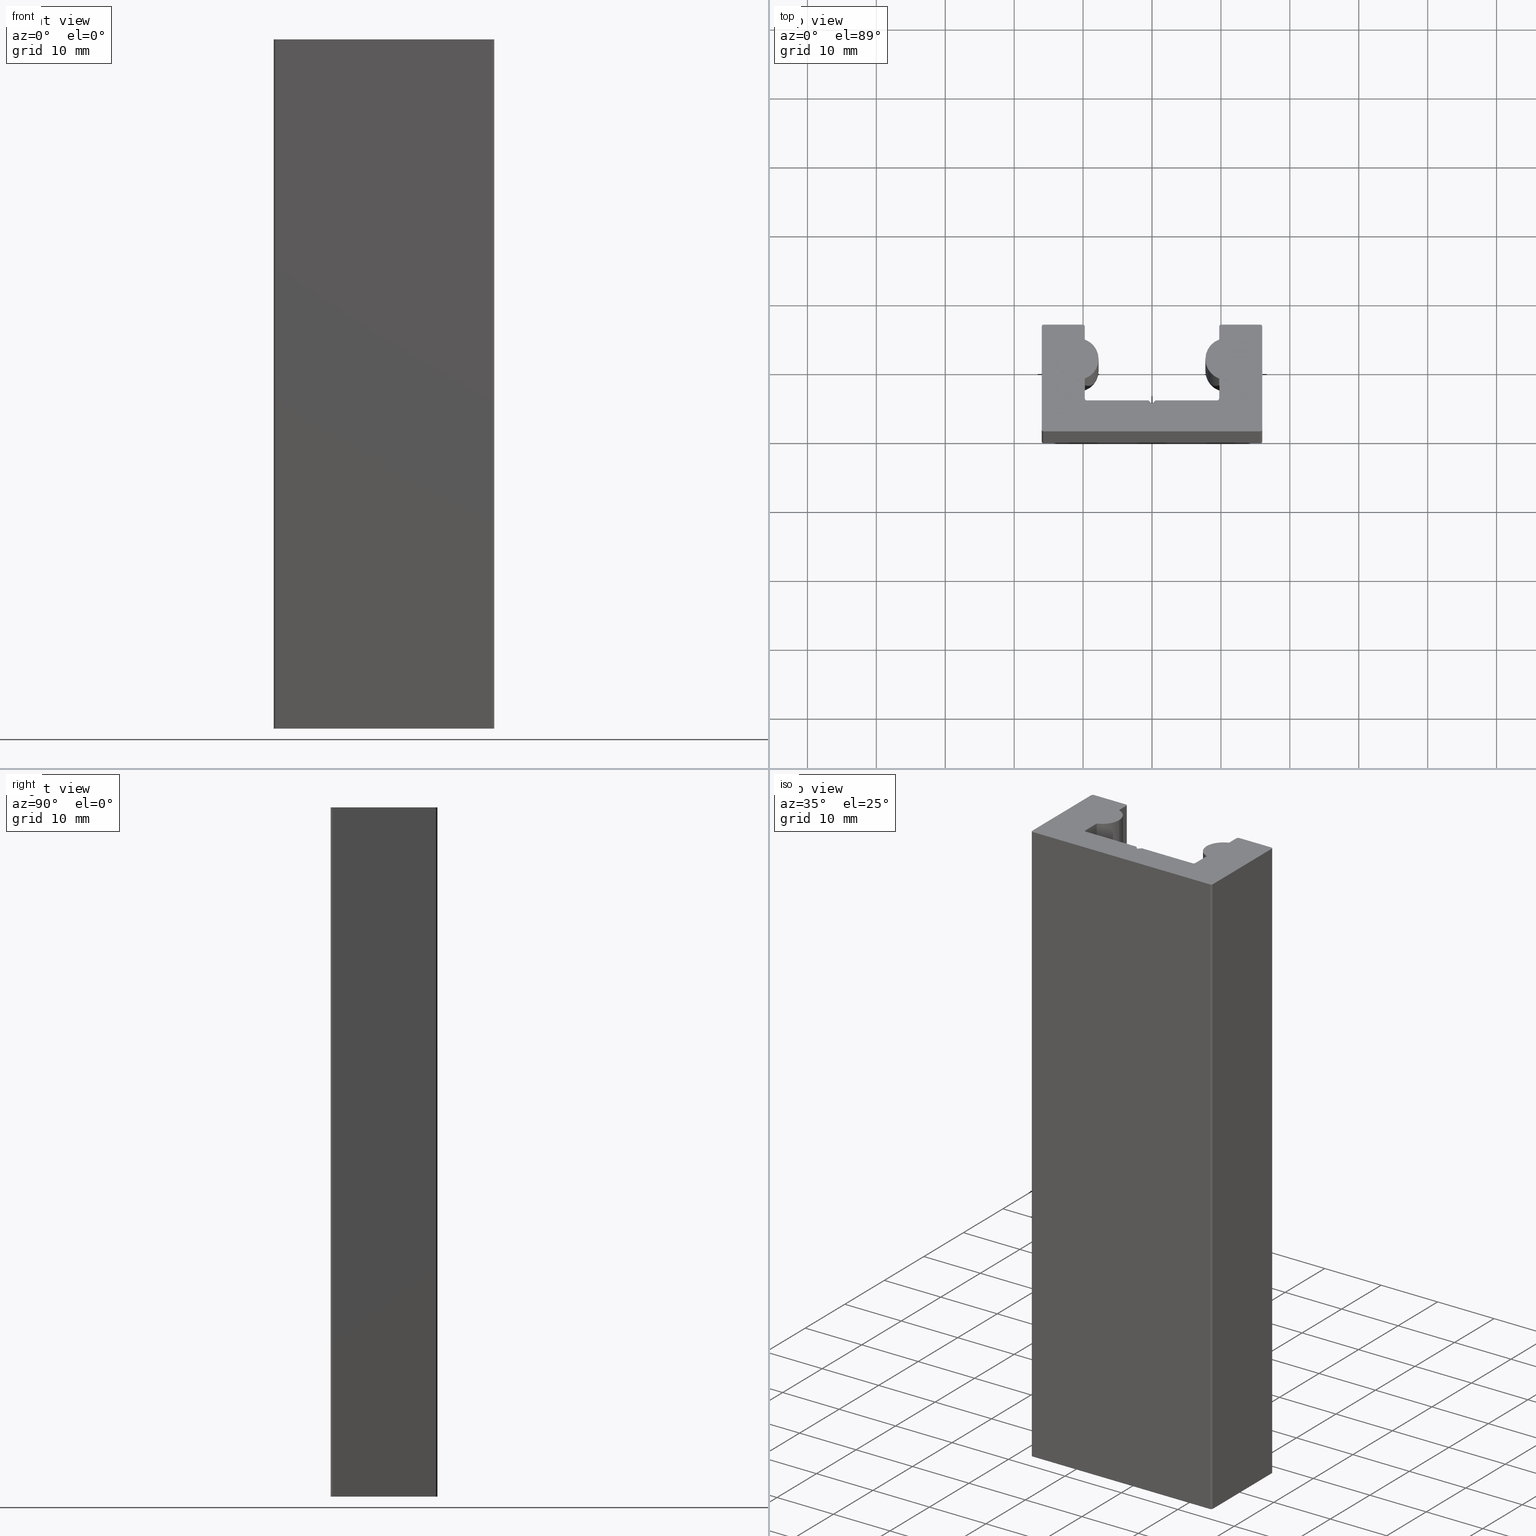
[diagram: canonical four-view strip — front | top / right | iso, engineering-drawing reading convention]
A machine part, canonical four-view strip (front | top / right | iso — engineering-drawing reading convention). The complete STEP part file that produces these views, byte-faithful:
ISO-10303-21;
HEADER;
/* Generated by software containing ST-Developer
 * from STEP Tools, Inc. (www.steptools.com) 
 */

FILE_DESCRIPTION(
/* description */ ('PROF.GUIDA IL32 32x15.5 '),
/* implementation_level */ '2;1');

FILE_NAME(
/* name */ 'C:\\Users\\tecnico5\\Desktop\\SITOWEB\\BPRGD0000013.stp',
/* time_stamp */ '2022-07-26T14:58:26+02:00',
/* author */ ('tecnico3.vi'),
/* organization */ (''),
/* preprocessor_version */ 'ST-DEVELOPER v18.1',
/* originating_system */ 'Autodesk Inventor 2022',
/* authorisation */ '');

FILE_SCHEMA (('AUTOMOTIVE_DESIGN { 1 0 10303 214 3 1 1 }'));
ENDSEC;

DATA;
#10=MECHANICAL_DESIGN_GEOMETRIC_PRESENTATION_REPRESENTATION('',(#27,#28),
#972);
#11=ITEM_DEFINED_TRANSFORMATION($,$,#594,#646);
#12=ITEM_DEFINED_TRANSFORMATION($,$,#640,#647);
#13=ITEM_DEFINED_TRANSFORMATION($,$,#640,#648);
#14=(
REPRESENTATION_RELATIONSHIP($,$,#987,#986)
REPRESENTATION_RELATIONSHIP_WITH_TRANSFORMATION(#11)
SHAPE_REPRESENTATION_RELATIONSHIP()
);
#15=(
REPRESENTATION_RELATIONSHIP($,$,#988,#986)
REPRESENTATION_RELATIONSHIP_WITH_TRANSFORMATION(#12)
SHAPE_REPRESENTATION_RELATIONSHIP()
);
#16=(
REPRESENTATION_RELATIONSHIP($,$,#988,#986)
REPRESENTATION_RELATIONSHIP_WITH_TRANSFORMATION(#13)
SHAPE_REPRESENTATION_RELATIONSHIP()
);
#17=CONTEXT_DEPENDENT_SHAPE_REPRESENTATION(#14,#983);
#18=CONTEXT_DEPENDENT_SHAPE_REPRESENTATION(#15,#984);
#19=CONTEXT_DEPENDENT_SHAPE_REPRESENTATION(#16,#985);
#20=NEXT_ASSEMBLY_USAGE_OCCURRENCE('958510004025:1','958510004025:1',
'958510004025:1',#990,#991,'958510004025:1');
#21=NEXT_ASSEMBLY_USAGE_OCCURRENCE('958510004024:1','958510004024:1',
'958510004024:1',#990,#992,'958510004024:1');
#22=NEXT_ASSEMBLY_USAGE_OCCURRENCE('958510004024:2','958510004024:2',
'958510004024:2',#990,#992,'958510004024:2');
#23=SHAPE_REPRESENTATION_RELATIONSHIP('SRR','None',#987,#25);
#24=SHAPE_REPRESENTATION_RELATIONSHIP('SRR','None',#988,#26);
#25=ADVANCED_BREP_SHAPE_REPRESENTATION('',(#29),#970);
#26=ADVANCED_BREP_SHAPE_REPRESENTATION('',(#30),#971);
#27=STYLED_ITEM('',(#557),#29);
#28=STYLED_ITEM('',(#558),#30);
#29=MANIFOLD_SOLID_BREP('Solido1',#529);
#30=MANIFOLD_SOLID_BREP('Solido1',#530);
#31=PLANE('',#598);
#32=PLANE('',#599);
#33=PLANE('',#611);
#34=PLANE('',#614);
#35=PLANE('',#617);
#36=PLANE('',#620);
#37=PLANE('',#623);
#38=PLANE('',#626);
#39=PLANE('',#629);
#40=PLANE('',#630);
#41=PLANE('',#633);
#42=PLANE('',#634);
#43=PLANE('',#635);
#44=PLANE('',#636);
#45=PLANE('',#639);
#46=PLANE('',#641);
#47=PLANE('',#645);
#48=FACE_OUTER_BOUND('',#76,.T.);
#49=FACE_OUTER_BOUND('',#77,.T.);
#50=FACE_OUTER_BOUND('',#78,.T.);
#51=FACE_OUTER_BOUND('',#79,.T.);
#52=FACE_OUTER_BOUND('',#80,.T.);
#53=FACE_OUTER_BOUND('',#81,.T.);
#54=FACE_OUTER_BOUND('',#82,.T.);
#55=FACE_OUTER_BOUND('',#83,.T.);
#56=FACE_OUTER_BOUND('',#84,.T.);
#57=FACE_OUTER_BOUND('',#85,.T.);
#58=FACE_OUTER_BOUND('',#86,.T.);
#59=FACE_OUTER_BOUND('',#87,.T.);
#60=FACE_OUTER_BOUND('',#88,.T.);
#61=FACE_OUTER_BOUND('',#89,.T.);
#62=FACE_OUTER_BOUND('',#90,.T.);
#63=FACE_OUTER_BOUND('',#91,.T.);
#64=FACE_OUTER_BOUND('',#92,.T.);
#65=FACE_OUTER_BOUND('',#93,.T.);
#66=FACE_OUTER_BOUND('',#94,.T.);
#67=FACE_OUTER_BOUND('',#95,.T.);
#68=FACE_OUTER_BOUND('',#96,.T.);
#69=FACE_OUTER_BOUND('',#97,.T.);
#70=FACE_OUTER_BOUND('',#98,.T.);
#71=FACE_OUTER_BOUND('',#99,.T.);
#72=FACE_OUTER_BOUND('',#100,.T.);
#73=FACE_OUTER_BOUND('',#101,.T.);
#74=FACE_OUTER_BOUND('',#102,.T.);
#75=FACE_OUTER_BOUND('',#103,.T.);
#76=EDGE_LOOP('',(#346,#347,#348,#349));
#77=EDGE_LOOP('',(#350,#351,#352,#353));
#78=EDGE_LOOP('',(#354,#355,#356,#357,#358,#359,#360,#361,#362,#363,#364,
#365,#366,#367,#368,#369,#370,#371,#372,#373,#374,#375,#376));
#79=EDGE_LOOP('',(#377,#378,#379,#380));
#80=EDGE_LOOP('',(#381,#382,#383,#384));
#81=EDGE_LOOP('',(#385,#386,#387,#388));
#82=EDGE_LOOP('',(#389,#390,#391,#392));
#83=EDGE_LOOP('',(#393,#394,#395,#396));
#84=EDGE_LOOP('',(#397,#398,#399,#400));
#85=EDGE_LOOP('',(#401,#402,#403,#404));
#86=EDGE_LOOP('',(#405,#406,#407,#408));
#87=EDGE_LOOP('',(#409,#410,#411,#412));
#88=EDGE_LOOP('',(#413,#414,#415,#416));
#89=EDGE_LOOP('',(#417,#418,#419,#420));
#90=EDGE_LOOP('',(#421,#422,#423,#424));
#91=EDGE_LOOP('',(#425,#426,#427,#428));
#92=EDGE_LOOP('',(#429,#430,#431,#432));
#93=EDGE_LOOP('',(#433,#434,#435,#436));
#94=EDGE_LOOP('',(#437,#438,#439,#440));
#95=EDGE_LOOP('',(#441,#442,#443,#444));
#96=EDGE_LOOP('',(#445,#446,#447,#448));
#97=EDGE_LOOP('',(#449,#450,#451,#452));
#98=EDGE_LOOP('',(#453,#454,#455,#456));
#99=EDGE_LOOP('',(#457,#458,#459,#460));
#100=EDGE_LOOP('',(#461,#462,#463,#464,#465,#466,#467,#468,#469,#470,#471,
#472,#473,#474,#475,#476,#477,#478,#479,#480,#481,#482,#483));
#101=EDGE_LOOP('',(#484));
#102=EDGE_LOOP('',(#485,#486,#487,#488));
#103=EDGE_LOOP('',(#489));
#104=LINE('',#818,#154);
#105=LINE('',#821,#155);
#106=LINE('',#824,#156);
#107=LINE('',#826,#157);
#108=LINE('',#827,#158);
#109=LINE('',#830,#159);
#110=LINE('',#834,#160);
#111=LINE('',#838,#161);
#112=LINE('',#842,#162);
#113=LINE('',#846,#163);
#114=LINE('',#850,#164);
#115=LINE('',#854,#165);
#116=LINE('',#858,#166);
#117=LINE('',#860,#167);
#118=LINE('',#862,#168);
#119=LINE('',#864,#169);
#120=LINE('',#868,#170);
#121=LINE('',#874,#171);
#122=LINE('',#875,#172);
#123=LINE('',#878,#173);
#124=LINE('',#879,#174);
#125=LINE('',#882,#175);
#126=LINE('',#885,#176);
#127=LINE('',#888,#177);
#128=LINE('',#889,#178);
#129=LINE('',#892,#179);
#130=LINE('',#895,#180);
#131=LINE('',#898,#181);
#132=LINE('',#899,#182);
#133=LINE('',#904,#183);
#134=LINE('',#905,#184);
#135=LINE('',#908,#185);
#136=LINE('',#909,#186);
#137=LINE('',#913,#187);
#138=LINE('',#915,#188);
#139=LINE('',#919,#189);
#140=LINE('',#922,#190);
#141=LINE('',#923,#191);
#142=LINE('',#926,#192);
#143=LINE('',#929,#193);
#144=LINE('',#932,#194);
#145=LINE('',#933,#195);
#146=LINE('',#938,#196);
#147=LINE('',#939,#197);
#148=LINE('',#942,#198);
#149=LINE('',#943,#199);
#150=LINE('',#945,#200);
#151=LINE('',#948,#201);
#152=LINE('',#949,#202);
#153=LINE('',#960,#203);
#154=VECTOR('',#657,10.);
#155=VECTOR('',#660,10.);
#156=VECTOR('',#663,10.);
#157=VECTOR('',#664,10.);
#158=VECTOR('',#665,10.);
#159=VECTOR('',#668,10.);
#160=VECTOR('',#671,10.);
#161=VECTOR('',#674,10.);
#162=VECTOR('',#677,10.);
#163=VECTOR('',#680,10.);
#164=VECTOR('',#683,10.);
#165=VECTOR('',#686,10.);
#166=VECTOR('',#689,10.);
#167=VECTOR('',#690,10.);
#168=VECTOR('',#691,10.);
#169=VECTOR('',#692,10.);
#170=VECTOR('',#695,10.);
#171=VECTOR('',#702,10.);
#172=VECTOR('',#703,10.);
#173=VECTOR('',#706,10.);
#174=VECTOR('',#707,10.);
#175=VECTOR('',#710,10.);
#176=VECTOR('',#713,10.);
#177=VECTOR('',#716,10.);
#178=VECTOR('',#717,10.);
#179=VECTOR('',#720,10.);
#180=VECTOR('',#723,10.);
#181=VECTOR('',#726,10.);
#182=VECTOR('',#727,10.);
#183=VECTOR('',#732,10.);
#184=VECTOR('',#733,10.);
#185=VECTOR('',#736,10.);
#186=VECTOR('',#737,10.);
#187=VECTOR('',#742,10.);
#188=VECTOR('',#745,10.);
#189=VECTOR('',#750,10.);
#190=VECTOR('',#753,10.);
#191=VECTOR('',#754,10.);
#192=VECTOR('',#757,10.);
#193=VECTOR('',#762,10.);
#194=VECTOR('',#765,10.);
#195=VECTOR('',#766,10.);
#196=VECTOR('',#773,10.);
#197=VECTOR('',#774,10.);
#198=VECTOR('',#777,10.);
#199=VECTOR('',#778,10.);
#200=VECTOR('',#781,10.);
#201=VECTOR('',#784,10.);
#202=VECTOR('',#785,10.);
#203=VECTOR('',#802,3.);
#204=CIRCLE('',#596,0.3);
#205=CIRCLE('',#597,0.3);
#206=CIRCLE('',#600,0.3);
#207=CIRCLE('',#601,0.3);
#208=CIRCLE('',#602,0.3);
#209=CIRCLE('',#603,0.3);
#210=CIRCLE('',#604,0.3);
#211=CIRCLE('',#605,3.);
#212=CIRCLE('',#606,0.3);
#213=CIRCLE('',#607,0.3);
#214=CIRCLE('',#608,3.);
#215=CIRCLE('',#610,0.3);
#216=CIRCLE('',#613,0.3);
#217=CIRCLE('',#616,0.3);
#218=CIRCLE('',#619,0.3);
#219=CIRCLE('',#622,0.3);
#220=CIRCLE('',#625,0.3);
#221=CIRCLE('',#628,0.3);
#222=CIRCLE('',#632,3.);
#223=CIRCLE('',#638,3.);
#224=CIRCLE('',#642,3.);
#225=CIRCLE('',#644,3.);
#226=VERTEX_POINT('',#814);
#227=VERTEX_POINT('',#815);
#228=VERTEX_POINT('',#817);
#229=VERTEX_POINT('',#819);
#230=VERTEX_POINT('',#823);
#231=VERTEX_POINT('',#825);
#232=VERTEX_POINT('',#829);
#233=VERTEX_POINT('',#831);
#234=VERTEX_POINT('',#833);
#235=VERTEX_POINT('',#835);
#236=VERTEX_POINT('',#837);
#237=VERTEX_POINT('',#839);
#238=VERTEX_POINT('',#841);
#239=VERTEX_POINT('',#843);
#240=VERTEX_POINT('',#845);
#241=VERTEX_POINT('',#847);
#242=VERTEX_POINT('',#849);
#243=VERTEX_POINT('',#851);
#244=VERTEX_POINT('',#853);
#245=VERTEX_POINT('',#855);
#246=VERTEX_POINT('',#857);
#247=VERTEX_POINT('',#859);
#248=VERTEX_POINT('',#861);
#249=VERTEX_POINT('',#863);
#250=VERTEX_POINT('',#865);
#251=VERTEX_POINT('',#867);
#252=VERTEX_POINT('',#871);
#253=VERTEX_POINT('',#872);
#254=VERTEX_POINT('',#877);
#255=VERTEX_POINT('',#881);
#256=VERTEX_POINT('',#883);
#257=VERTEX_POINT('',#887);
#258=VERTEX_POINT('',#891);
#259=VERTEX_POINT('',#893);
#260=VERTEX_POINT('',#897);
#261=VERTEX_POINT('',#901);
#262=VERTEX_POINT('',#902);
#263=VERTEX_POINT('',#907);
#264=VERTEX_POINT('',#911);
#265=VERTEX_POINT('',#917);
#266=VERTEX_POINT('',#921);
#267=VERTEX_POINT('',#925);
#268=VERTEX_POINT('',#931);
#269=VERTEX_POINT('',#937);
#270=VERTEX_POINT('',#941);
#271=VERTEX_POINT('',#947);
#272=VERTEX_POINT('',#955);
#273=VERTEX_POINT('',#958);
#274=EDGE_CURVE('',#226,#227,#204,.T.);
#275=EDGE_CURVE('',#227,#228,#104,.T.);
#276=EDGE_CURVE('',#228,#229,#205,.T.);
#277=EDGE_CURVE('',#229,#226,#105,.T.);
#278=EDGE_CURVE('',#229,#230,#106,.T.);
#279=EDGE_CURVE('',#230,#231,#107,.T.);
#280=EDGE_CURVE('',#231,#226,#108,.T.);
#281=EDGE_CURVE('',#232,#228,#109,.T.);
#282=EDGE_CURVE('',#233,#232,#206,.T.);
#283=EDGE_CURVE('',#234,#233,#110,.T.);
#284=EDGE_CURVE('',#235,#234,#207,.T.);
#285=EDGE_CURVE('',#236,#235,#111,.T.);
#286=EDGE_CURVE('',#237,#236,#208,.T.);
#287=EDGE_CURVE('',#238,#237,#112,.T.);
#288=EDGE_CURVE('',#239,#238,#209,.T.);
#289=EDGE_CURVE('',#240,#239,#113,.T.);
#290=EDGE_CURVE('',#241,#240,#210,.T.);
#291=EDGE_CURVE('',#242,#241,#114,.T.);
#292=EDGE_CURVE('',#243,#242,#211,.T.);
#293=EDGE_CURVE('',#244,#243,#115,.T.);
#294=EDGE_CURVE('',#245,#244,#212,.T.);
#295=EDGE_CURVE('',#246,#245,#116,.T.);
#296=EDGE_CURVE('',#247,#246,#117,.T.);
#297=EDGE_CURVE('',#248,#247,#118,.T.);
#298=EDGE_CURVE('',#249,#248,#119,.T.);
#299=EDGE_CURVE('',#250,#249,#213,.T.);
#300=EDGE_CURVE('',#251,#250,#120,.T.);
#301=EDGE_CURVE('',#230,#251,#214,.T.);
#302=EDGE_CURVE('',#252,#253,#215,.T.);
#303=EDGE_CURVE('',#253,#241,#121,.T.);
#304=EDGE_CURVE('',#240,#252,#122,.T.);
#305=EDGE_CURVE('',#254,#239,#123,.T.);
#306=EDGE_CURVE('',#254,#252,#124,.T.);
#307=EDGE_CURVE('',#244,#255,#125,.T.);
#308=EDGE_CURVE('',#255,#256,#216,.T.);
#309=EDGE_CURVE('',#256,#245,#126,.T.);
#310=EDGE_CURVE('',#243,#257,#127,.T.);
#311=EDGE_CURVE('',#257,#255,#128,.T.);
#312=EDGE_CURVE('',#249,#258,#129,.T.);
#313=EDGE_CURVE('',#258,#259,#217,.T.);
#314=EDGE_CURVE('',#259,#250,#130,.T.);
#315=EDGE_CURVE('',#248,#260,#131,.T.);
#316=EDGE_CURVE('',#260,#258,#132,.T.);
#317=EDGE_CURVE('',#261,#262,#218,.T.);
#318=EDGE_CURVE('',#262,#235,#133,.T.);
#319=EDGE_CURVE('',#234,#261,#134,.T.);
#320=EDGE_CURVE('',#263,#233,#135,.T.);
#321=EDGE_CURVE('',#263,#261,#136,.T.);
#322=EDGE_CURVE('',#264,#263,#219,.T.);
#323=EDGE_CURVE('',#232,#264,#137,.T.);
#324=EDGE_CURVE('',#227,#264,#138,.T.);
#325=EDGE_CURVE('',#265,#254,#220,.T.);
#326=EDGE_CURVE('',#238,#265,#139,.T.);
#327=EDGE_CURVE('',#266,#237,#140,.T.);
#328=EDGE_CURVE('',#266,#265,#141,.T.);
#329=EDGE_CURVE('',#236,#267,#142,.T.);
#330=EDGE_CURVE('',#267,#266,#221,.T.);
#331=EDGE_CURVE('',#262,#267,#143,.T.);
#332=EDGE_CURVE('',#253,#268,#144,.T.);
#333=EDGE_CURVE('',#242,#268,#145,.T.);
#334=EDGE_CURVE('',#268,#257,#222,.T.);
#335=EDGE_CURVE('',#256,#269,#146,.T.);
#336=EDGE_CURVE('',#246,#269,#147,.T.);
#337=EDGE_CURVE('',#269,#270,#148,.T.);
#338=EDGE_CURVE('',#247,#270,#149,.T.);
#339=EDGE_CURVE('',#270,#260,#150,.T.);
#340=EDGE_CURVE('',#259,#271,#151,.T.);
#341=EDGE_CURVE('',#251,#271,#152,.T.);
#342=EDGE_CURVE('',#271,#231,#223,.T.);
#343=EDGE_CURVE('',#272,#272,#224,.T.);
#344=EDGE_CURVE('',#273,#273,#225,.T.);
#345=EDGE_CURVE('',#273,#272,#153,.T.);
#346=ORIENTED_EDGE('',*,*,#274,.T.);
#347=ORIENTED_EDGE('',*,*,#275,.T.);
#348=ORIENTED_EDGE('',*,*,#276,.T.);
#349=ORIENTED_EDGE('',*,*,#277,.T.);
#350=ORIENTED_EDGE('',*,*,#277,.F.);
#351=ORIENTED_EDGE('',*,*,#278,.T.);
#352=ORIENTED_EDGE('',*,*,#279,.T.);
#353=ORIENTED_EDGE('',*,*,#280,.T.);
#354=ORIENTED_EDGE('',*,*,#276,.F.);
#355=ORIENTED_EDGE('',*,*,#281,.F.);
#356=ORIENTED_EDGE('',*,*,#282,.F.);
#357=ORIENTED_EDGE('',*,*,#283,.F.);
#358=ORIENTED_EDGE('',*,*,#284,.F.);
#359=ORIENTED_EDGE('',*,*,#285,.F.);
#360=ORIENTED_EDGE('',*,*,#286,.F.);
#361=ORIENTED_EDGE('',*,*,#287,.F.);
#362=ORIENTED_EDGE('',*,*,#288,.F.);
#363=ORIENTED_EDGE('',*,*,#289,.F.);
#364=ORIENTED_EDGE('',*,*,#290,.F.);
#365=ORIENTED_EDGE('',*,*,#291,.F.);
#366=ORIENTED_EDGE('',*,*,#292,.F.);
#367=ORIENTED_EDGE('',*,*,#293,.F.);
#368=ORIENTED_EDGE('',*,*,#294,.F.);
#369=ORIENTED_EDGE('',*,*,#295,.F.);
#370=ORIENTED_EDGE('',*,*,#296,.F.);
#371=ORIENTED_EDGE('',*,*,#297,.F.);
#372=ORIENTED_EDGE('',*,*,#298,.F.);
#373=ORIENTED_EDGE('',*,*,#299,.F.);
#374=ORIENTED_EDGE('',*,*,#300,.F.);
#375=ORIENTED_EDGE('',*,*,#301,.F.);
#376=ORIENTED_EDGE('',*,*,#278,.F.);
#377=ORIENTED_EDGE('',*,*,#302,.T.);
#378=ORIENTED_EDGE('',*,*,#303,.T.);
#379=ORIENTED_EDGE('',*,*,#290,.T.);
#380=ORIENTED_EDGE('',*,*,#304,.T.);
#381=ORIENTED_EDGE('',*,*,#304,.F.);
#382=ORIENTED_EDGE('',*,*,#289,.T.);
#383=ORIENTED_EDGE('',*,*,#305,.F.);
#384=ORIENTED_EDGE('',*,*,#306,.T.);
#385=ORIENTED_EDGE('',*,*,#294,.T.);
#386=ORIENTED_EDGE('',*,*,#307,.T.);
#387=ORIENTED_EDGE('',*,*,#308,.T.);
#388=ORIENTED_EDGE('',*,*,#309,.T.);
#389=ORIENTED_EDGE('',*,*,#307,.F.);
#390=ORIENTED_EDGE('',*,*,#293,.T.);
#391=ORIENTED_EDGE('',*,*,#310,.T.);
#392=ORIENTED_EDGE('',*,*,#311,.T.);
#393=ORIENTED_EDGE('',*,*,#299,.T.);
#394=ORIENTED_EDGE('',*,*,#312,.T.);
#395=ORIENTED_EDGE('',*,*,#313,.T.);
#396=ORIENTED_EDGE('',*,*,#314,.T.);
#397=ORIENTED_EDGE('',*,*,#312,.F.);
#398=ORIENTED_EDGE('',*,*,#298,.T.);
#399=ORIENTED_EDGE('',*,*,#315,.T.);
#400=ORIENTED_EDGE('',*,*,#316,.T.);
#401=ORIENTED_EDGE('',*,*,#317,.T.);
#402=ORIENTED_EDGE('',*,*,#318,.T.);
#403=ORIENTED_EDGE('',*,*,#284,.T.);
#404=ORIENTED_EDGE('',*,*,#319,.T.);
#405=ORIENTED_EDGE('',*,*,#319,.F.);
#406=ORIENTED_EDGE('',*,*,#283,.T.);
#407=ORIENTED_EDGE('',*,*,#320,.F.);
#408=ORIENTED_EDGE('',*,*,#321,.T.);
#409=ORIENTED_EDGE('',*,*,#322,.T.);
#410=ORIENTED_EDGE('',*,*,#320,.T.);
#411=ORIENTED_EDGE('',*,*,#282,.T.);
#412=ORIENTED_EDGE('',*,*,#323,.T.);
#413=ORIENTED_EDGE('',*,*,#275,.F.);
#414=ORIENTED_EDGE('',*,*,#324,.T.);
#415=ORIENTED_EDGE('',*,*,#323,.F.);
#416=ORIENTED_EDGE('',*,*,#281,.T.);
#417=ORIENTED_EDGE('',*,*,#325,.T.);
#418=ORIENTED_EDGE('',*,*,#305,.T.);
#419=ORIENTED_EDGE('',*,*,#288,.T.);
#420=ORIENTED_EDGE('',*,*,#326,.T.);
#421=ORIENTED_EDGE('',*,*,#326,.F.);
#422=ORIENTED_EDGE('',*,*,#287,.T.);
#423=ORIENTED_EDGE('',*,*,#327,.F.);
#424=ORIENTED_EDGE('',*,*,#328,.T.);
#425=ORIENTED_EDGE('',*,*,#286,.T.);
#426=ORIENTED_EDGE('',*,*,#329,.T.);
#427=ORIENTED_EDGE('',*,*,#330,.T.);
#428=ORIENTED_EDGE('',*,*,#327,.T.);
#429=ORIENTED_EDGE('',*,*,#318,.F.);
#430=ORIENTED_EDGE('',*,*,#331,.T.);
#431=ORIENTED_EDGE('',*,*,#329,.F.);
#432=ORIENTED_EDGE('',*,*,#285,.T.);
#433=ORIENTED_EDGE('',*,*,#303,.F.);
#434=ORIENTED_EDGE('',*,*,#332,.T.);
#435=ORIENTED_EDGE('',*,*,#333,.F.);
#436=ORIENTED_EDGE('',*,*,#291,.T.);
#437=ORIENTED_EDGE('',*,*,#334,.T.);
#438=ORIENTED_EDGE('',*,*,#310,.F.);
#439=ORIENTED_EDGE('',*,*,#292,.T.);
#440=ORIENTED_EDGE('',*,*,#333,.T.);
#441=ORIENTED_EDGE('',*,*,#309,.F.);
#442=ORIENTED_EDGE('',*,*,#335,.T.);
#443=ORIENTED_EDGE('',*,*,#336,.F.);
#444=ORIENTED_EDGE('',*,*,#295,.T.);
#445=ORIENTED_EDGE('',*,*,#337,.T.);
#446=ORIENTED_EDGE('',*,*,#338,.F.);
#447=ORIENTED_EDGE('',*,*,#296,.T.);
#448=ORIENTED_EDGE('',*,*,#336,.T.);
#449=ORIENTED_EDGE('',*,*,#339,.T.);
#450=ORIENTED_EDGE('',*,*,#315,.F.);
#451=ORIENTED_EDGE('',*,*,#297,.T.);
#452=ORIENTED_EDGE('',*,*,#338,.T.);
#453=ORIENTED_EDGE('',*,*,#314,.F.);
#454=ORIENTED_EDGE('',*,*,#340,.T.);
#455=ORIENTED_EDGE('',*,*,#341,.F.);
#456=ORIENTED_EDGE('',*,*,#300,.T.);
#457=ORIENTED_EDGE('',*,*,#342,.T.);
#458=ORIENTED_EDGE('',*,*,#279,.F.);
#459=ORIENTED_EDGE('',*,*,#301,.T.);
#460=ORIENTED_EDGE('',*,*,#341,.T.);
#461=ORIENTED_EDGE('',*,*,#274,.F.);
#462=ORIENTED_EDGE('',*,*,#280,.F.);
#463=ORIENTED_EDGE('',*,*,#342,.F.);
#464=ORIENTED_EDGE('',*,*,#340,.F.);
#465=ORIENTED_EDGE('',*,*,#313,.F.);
#466=ORIENTED_EDGE('',*,*,#316,.F.);
#467=ORIENTED_EDGE('',*,*,#339,.F.);
#468=ORIENTED_EDGE('',*,*,#337,.F.);
#469=ORIENTED_EDGE('',*,*,#335,.F.);
#470=ORIENTED_EDGE('',*,*,#308,.F.);
#471=ORIENTED_EDGE('',*,*,#311,.F.);
#472=ORIENTED_EDGE('',*,*,#334,.F.);
#473=ORIENTED_EDGE('',*,*,#332,.F.);
#474=ORIENTED_EDGE('',*,*,#302,.F.);
#475=ORIENTED_EDGE('',*,*,#306,.F.);
#476=ORIENTED_EDGE('',*,*,#325,.F.);
#477=ORIENTED_EDGE('',*,*,#328,.F.);
#478=ORIENTED_EDGE('',*,*,#330,.F.);
#479=ORIENTED_EDGE('',*,*,#331,.F.);
#480=ORIENTED_EDGE('',*,*,#317,.F.);
#481=ORIENTED_EDGE('',*,*,#321,.F.);
#482=ORIENTED_EDGE('',*,*,#322,.F.);
#483=ORIENTED_EDGE('',*,*,#324,.F.);
#484=ORIENTED_EDGE('',*,*,#343,.F.);
#485=ORIENTED_EDGE('',*,*,#344,.T.);
#486=ORIENTED_EDGE('',*,*,#345,.T.);
#487=ORIENTED_EDGE('',*,*,#343,.T.);
#488=ORIENTED_EDGE('',*,*,#345,.F.);
#489=ORIENTED_EDGE('',*,*,#344,.F.);
#490=CYLINDRICAL_SURFACE('',#595,0.3);
#491=CYLINDRICAL_SURFACE('',#609,0.3);
#492=CYLINDRICAL_SURFACE('',#612,0.3);
#493=CYLINDRICAL_SURFACE('',#615,0.3);
#494=CYLINDRICAL_SURFACE('',#618,0.3);
#495=CYLINDRICAL_SURFACE('',#621,0.3);
#496=CYLINDRICAL_SURFACE('',#624,0.3);
#497=CYLINDRICAL_SURFACE('',#627,0.3);
#498=CYLINDRICAL_SURFACE('',#631,3.);
#499=CYLINDRICAL_SURFACE('',#637,3.);
#500=CYLINDRICAL_SURFACE('',#643,3.);
#501=ADVANCED_FACE('',(#48),#490,.T.);
#502=ADVANCED_FACE('',(#49),#31,.T.);
#503=ADVANCED_FACE('',(#50),#32,.F.);
#504=ADVANCED_FACE('',(#51),#491,.T.);
#505=ADVANCED_FACE('',(#52),#33,.T.);
#506=ADVANCED_FACE('',(#53),#492,.F.);
#507=ADVANCED_FACE('',(#54),#34,.T.);
#508=ADVANCED_FACE('',(#55),#493,.F.);
#509=ADVANCED_FACE('',(#56),#35,.T.);
#510=ADVANCED_FACE('',(#57),#494,.T.);
#511=ADVANCED_FACE('',(#58),#36,.T.);
#512=ADVANCED_FACE('',(#59),#495,.T.);
#513=ADVANCED_FACE('',(#60),#37,.T.);
#514=ADVANCED_FACE('',(#61),#496,.T.);
#515=ADVANCED_FACE('',(#62),#38,.T.);
#516=ADVANCED_FACE('',(#63),#497,.T.);
#517=ADVANCED_FACE('',(#64),#39,.T.);
#518=ADVANCED_FACE('',(#65),#40,.T.);
#519=ADVANCED_FACE('',(#66),#498,.F.);
#520=ADVANCED_FACE('',(#67),#41,.T.);
#521=ADVANCED_FACE('',(#68),#42,.T.);
#522=ADVANCED_FACE('',(#69),#43,.T.);
#523=ADVANCED_FACE('',(#70),#44,.T.);
#524=ADVANCED_FACE('',(#71),#499,.F.);
#525=ADVANCED_FACE('',(#72),#45,.T.);
#526=ADVANCED_FACE('',(#73),#46,.T.);
#527=ADVANCED_FACE('',(#74),#500,.T.);
#528=ADVANCED_FACE('',(#75),#47,.F.);
#529=CLOSED_SHELL('',(#501,#502,#503,#504,#505,#506,#507,#508,#509,#510,
#511,#512,#513,#514,#515,#516,#517,#518,#519,#520,#521,#522,#523,#524,#525));
#530=CLOSED_SHELL('',(#526,#527,#528));
#531=DERIVED_UNIT_ELEMENT(#536,1.);
#532=DERIVED_UNIT_ELEMENT(#974,-3.);
#533=DERIVED_UNIT_ELEMENT(#536,1.);
#534=DERIVED_UNIT_ELEMENT(#974,-3.);
#535=DIMENSIONAL_EXPONENTS(1.,0.,0.,0.,0.,0.,0.);
#536=(
CONVERSION_BASED_UNIT('gram',#538)
MASS_UNIT()
NAMED_UNIT(#535)
);
#537=(
MASS_UNIT()
NAMED_UNIT(*)
SI_UNIT(.KILO.,.GRAM.)
);
#538=MASS_MEASURE_WITH_UNIT(MASS_MEASURE(0.001),#537);
#539=DERIVED_UNIT((#531,#532));
#540=DERIVED_UNIT((#533,#534));
#541=MEASURE_REPRESENTATION_ITEM('density measure',
POSITIVE_RATIO_MEASURE(2.71),#539);
#542=MEASURE_REPRESENTATION_ITEM('density measure',
POSITIVE_RATIO_MEASURE(7.85),#540);
#543=PROPERTY_DEFINITION_REPRESENTATION(#553,#547);
#544=PROPERTY_DEFINITION_REPRESENTATION(#554,#548);
#545=PROPERTY_DEFINITION_REPRESENTATION(#555,#549);
#546=PROPERTY_DEFINITION_REPRESENTATION(#556,#550);
#547=REPRESENTATION('material name',(#551),#970);
#548=REPRESENTATION('density',(#541),#970);
#549=REPRESENTATION('material name',(#552),#971);
#550=REPRESENTATION('density',(#542),#971);
#551=DESCRIPTIVE_REPRESENTATION_ITEM('Alluminio - 6061',
'Alluminio - 6061');
#552=DESCRIPTIVE_REPRESENTATION_ITEM('Acciaio','Acciaio');
#553=PROPERTY_DEFINITION('material property','material name',#991);
#554=PROPERTY_DEFINITION('material property','density of part',#991);
#555=PROPERTY_DEFINITION('material property','material name',#992);
#556=PROPERTY_DEFINITION('material property','density of part',#992);
#557=PRESENTATION_STYLE_ASSIGNMENT((#559));
#558=PRESENTATION_STYLE_ASSIGNMENT((#560));
#559=SURFACE_STYLE_USAGE(.BOTH.,#565);
#560=SURFACE_STYLE_USAGE(.BOTH.,#566);
#561=SURFACE_STYLE_RENDERING_WITH_PROPERTIES($,#573,(#563));
#562=SURFACE_STYLE_RENDERING_WITH_PROPERTIES($,#574,(#564));
#563=SURFACE_STYLE_TRANSPARENT(0.);
#564=SURFACE_STYLE_TRANSPARENT(0.);
#565=SURFACE_SIDE_STYLE('',(#567,#561));
#566=SURFACE_SIDE_STYLE('',(#568,#562));
#567=SURFACE_STYLE_FILL_AREA(#569);
#568=SURFACE_STYLE_FILL_AREA(#570);
#569=FILL_AREA_STYLE('',(#571));
#570=FILL_AREA_STYLE('',(#572));
#571=FILL_AREA_STYLE_COLOUR('',#573);
#572=FILL_AREA_STYLE_COLOUR('',#574);
#573=COLOUR_RGB('',0.898039215686275,0.898039215686275,0.898039215686275);
#574=COLOUR_RGB('',0.956862745098039,0.956862745098039,0.956862745098039);
#575=DATE_TIME_ROLE('creation_date');
#576=DATE_TIME_ROLE('creation_date');
#577=DATE_TIME_ROLE('creation_date');
#578=APPLIED_DATE_AND_TIME_ASSIGNMENT(#581,#575,(#990));
#579=APPLIED_DATE_AND_TIME_ASSIGNMENT(#582,#576,(#991));
#580=APPLIED_DATE_AND_TIME_ASSIGNMENT(#583,#577,(#992));
#581=DATE_AND_TIME(#584,#587);
#582=DATE_AND_TIME(#585,#588);
#583=DATE_AND_TIME(#586,#589);
#584=CALENDAR_DATE(2013,5,6);
#585=CALENDAR_DATE(2015,23,2);
#586=CALENDAR_DATE(2015,23,2);
#587=LOCAL_TIME(0,0,0.,#590);
#588=LOCAL_TIME(0,0,0.,#591);
#589=LOCAL_TIME(0,0,0.,#592);
#590=COORDINATED_UNIVERSAL_TIME_OFFSET(0,0,.BEHIND.);
#591=COORDINATED_UNIVERSAL_TIME_OFFSET(0,0,.BEHIND.);
#592=COORDINATED_UNIVERSAL_TIME_OFFSET(0,0,.BEHIND.);
#593=AXIS2_PLACEMENT_3D('placement',#811,#649,#650);
#594=AXIS2_PLACEMENT_3D('placement',#812,#651,#652);
#595=AXIS2_PLACEMENT_3D('',#813,#653,#654);
#596=AXIS2_PLACEMENT_3D('',#816,#655,#656);
#597=AXIS2_PLACEMENT_3D('',#820,#658,#659);
#598=AXIS2_PLACEMENT_3D('',#822,#661,#662);
#599=AXIS2_PLACEMENT_3D('',#828,#666,#667);
#600=AXIS2_PLACEMENT_3D('',#832,#669,#670);
#601=AXIS2_PLACEMENT_3D('',#836,#672,#673);
#602=AXIS2_PLACEMENT_3D('',#840,#675,#676);
#603=AXIS2_PLACEMENT_3D('',#844,#678,#679);
#604=AXIS2_PLACEMENT_3D('',#848,#681,#682);
#605=AXIS2_PLACEMENT_3D('',#852,#684,#685);
#606=AXIS2_PLACEMENT_3D('',#856,#687,#688);
#607=AXIS2_PLACEMENT_3D('',#866,#693,#694);
#608=AXIS2_PLACEMENT_3D('',#869,#696,#697);
#609=AXIS2_PLACEMENT_3D('',#870,#698,#699);
#610=AXIS2_PLACEMENT_3D('',#873,#700,#701);
#611=AXIS2_PLACEMENT_3D('',#876,#704,#705);
#612=AXIS2_PLACEMENT_3D('',#880,#708,#709);
#613=AXIS2_PLACEMENT_3D('',#884,#711,#712);
#614=AXIS2_PLACEMENT_3D('',#886,#714,#715);
#615=AXIS2_PLACEMENT_3D('',#890,#718,#719);
#616=AXIS2_PLACEMENT_3D('',#894,#721,#722);
#617=AXIS2_PLACEMENT_3D('',#896,#724,#725);
#618=AXIS2_PLACEMENT_3D('',#900,#728,#729);
#619=AXIS2_PLACEMENT_3D('',#903,#730,#731);
#620=AXIS2_PLACEMENT_3D('',#906,#734,#735);
#621=AXIS2_PLACEMENT_3D('',#910,#738,#739);
#622=AXIS2_PLACEMENT_3D('',#912,#740,#741);
#623=AXIS2_PLACEMENT_3D('',#914,#743,#744);
#624=AXIS2_PLACEMENT_3D('',#916,#746,#747);
#625=AXIS2_PLACEMENT_3D('',#918,#748,#749);
#626=AXIS2_PLACEMENT_3D('',#920,#751,#752);
#627=AXIS2_PLACEMENT_3D('',#924,#755,#756);
#628=AXIS2_PLACEMENT_3D('',#927,#758,#759);
#629=AXIS2_PLACEMENT_3D('',#928,#760,#761);
#630=AXIS2_PLACEMENT_3D('',#930,#763,#764);
#631=AXIS2_PLACEMENT_3D('',#934,#767,#768);
#632=AXIS2_PLACEMENT_3D('',#935,#769,#770);
#633=AXIS2_PLACEMENT_3D('',#936,#771,#772);
#634=AXIS2_PLACEMENT_3D('',#940,#775,#776);
#635=AXIS2_PLACEMENT_3D('',#944,#779,#780);
#636=AXIS2_PLACEMENT_3D('',#946,#782,#783);
#637=AXIS2_PLACEMENT_3D('',#950,#786,#787);
#638=AXIS2_PLACEMENT_3D('',#951,#788,#789);
#639=AXIS2_PLACEMENT_3D('',#952,#790,#791);
#640=AXIS2_PLACEMENT_3D('placement',#953,#792,#793);
#641=AXIS2_PLACEMENT_3D('',#954,#794,#795);
#642=AXIS2_PLACEMENT_3D('',#956,#796,#797);
#643=AXIS2_PLACEMENT_3D('',#957,#798,#799);
#644=AXIS2_PLACEMENT_3D('',#959,#800,#801);
#645=AXIS2_PLACEMENT_3D('',#961,#803,#804);
#646=AXIS2_PLACEMENT_3D('',#962,#805,#806);
#647=AXIS2_PLACEMENT_3D('',#963,#807,#808);
#648=AXIS2_PLACEMENT_3D('',#964,#809,#810);
#649=DIRECTION('axis',(0.,0.,1.));
#650=DIRECTION('refdir',(1.,0.,0.));
#651=DIRECTION('axis',(0.,0.,1.));
#652=DIRECTION('refdir',(1.,0.,0.));
#653=DIRECTION('center_axis',(0.,0.,1.));
#654=DIRECTION('ref_axis',(-0.707106781186542,0.707106781186553,0.));
#655=DIRECTION('center_axis',(0.,0.,-1.));
#656=DIRECTION('ref_axis',(-0.707106781186542,0.707106781186553,0.));
#657=DIRECTION('',(0.,0.,-1.));
#658=DIRECTION('center_axis',(0.,0.,1.));
#659=DIRECTION('ref_axis',(-0.707106781186542,0.707106781186553,0.));
#660=DIRECTION('',(0.,0.,1.));
#661=DIRECTION('center_axis',(-1.,7.66879415337645E-15,0.));
#662=DIRECTION('ref_axis',(0.,0.,1.));
#663=DIRECTION('',(-7.66879415337645E-15,-1.,0.));
#664=DIRECTION('',(0.,0.,1.));
#665=DIRECTION('',(7.66879415337645E-15,1.,0.));
#666=DIRECTION('center_axis',(0.,0.,1.));
#667=DIRECTION('ref_axis',(1.,0.,0.));
#668=DIRECTION('',(-1.,7.10542735760102E-16,0.));
#669=DIRECTION('center_axis',(0.,0.,1.));
#670=DIRECTION('ref_axis',(0.707106781186548,0.707106781186548,0.));
#671=DIRECTION('',(0.,1.,0.));
#672=DIRECTION('center_axis',(0.,0.,1.));
#673=DIRECTION('ref_axis',(0.707106781186545,-0.70710678118655,0.));
#674=DIRECTION('',(1.,0.,0.));
#675=DIRECTION('center_axis',(0.,0.,1.));
#676=DIRECTION('ref_axis',(-0.70710678118655,-0.707106781186545,0.));
#677=DIRECTION('',(0.,-1.,0.));
#678=DIRECTION('center_axis',(0.,0.,1.));
#679=DIRECTION('ref_axis',(-0.707106781186548,0.707106781186548,0.));
#680=DIRECTION('',(-1.,-3.55271367880051E-16,0.));
#681=DIRECTION('center_axis',(0.,0.,1.));
#682=DIRECTION('ref_axis',(0.707106781186545,0.70710678118655,0.));
#683=DIRECTION('',(-4.60127649202588E-15,1.,0.));
#684=DIRECTION('center_axis',(0.,0.,-1.));
#685=DIRECTION('ref_axis',(-0.333333333333333,-0.942809041582063,0.));
#686=DIRECTION('',(0.,1.,0.));
#687=DIRECTION('center_axis',(0.,0.,-1.));
#688=DIRECTION('ref_axis',(-0.707106781186547,-0.707106781186547,0.));
#689=DIRECTION('',(-1.,-1.20024110770287E-16,0.));
#690=DIRECTION('',(-0.707106781186546,0.707106781186549,0.));
#691=DIRECTION('',(-0.707106781186546,-0.707106781186549,0.));
#692=DIRECTION('',(-1.,6.00120553851436E-17,0.));
#693=DIRECTION('center_axis',(0.,0.,-1.));
#694=DIRECTION('ref_axis',(0.707106781186547,-0.707106781186547,0.));
#695=DIRECTION('',(0.,-1.,0.));
#696=DIRECTION('center_axis',(0.,0.,-1.));
#697=DIRECTION('ref_axis',(0.333333333333333,0.942809041582063,0.));
#698=DIRECTION('center_axis',(0.,0.,1.));
#699=DIRECTION('ref_axis',(0.707106781186545,0.70710678118655,0.));
#700=DIRECTION('center_axis',(0.,0.,-1.));
#701=DIRECTION('ref_axis',(0.707106781186545,0.70710678118655,0.));
#702=DIRECTION('',(0.,0.,-1.));
#703=DIRECTION('',(0.,0.,1.));
#704=DIRECTION('center_axis',(-3.55271367880051E-16,1.,0.));
#705=DIRECTION('ref_axis',(0.,0.,1.));
#706=DIRECTION('',(0.,0.,-1.));
#707=DIRECTION('',(1.,3.55271367880051E-16,0.));
#708=DIRECTION('center_axis',(0.,0.,1.));
#709=DIRECTION('ref_axis',(-0.707106781186547,-0.707106781186547,0.));
#710=DIRECTION('',(0.,0.,1.));
#711=DIRECTION('center_axis',(0.,0.,1.));
#712=DIRECTION('ref_axis',(-0.707106781186547,-0.707106781186547,0.));
#713=DIRECTION('',(0.,0.,-1.));
#714=DIRECTION('center_axis',(1.,0.,0.));
#715=DIRECTION('ref_axis',(0.,0.,-1.));
#716=DIRECTION('',(0.,0.,1.));
#717=DIRECTION('',(0.,-1.,0.));
#718=DIRECTION('center_axis',(0.,0.,1.));
#719=DIRECTION('ref_axis',(0.707106781186547,-0.707106781186547,0.));
#720=DIRECTION('',(0.,0.,1.));
#721=DIRECTION('center_axis',(0.,0.,1.));
#722=DIRECTION('ref_axis',(0.707106781186547,-0.707106781186547,0.));
#723=DIRECTION('',(0.,0.,-1.));
#724=DIRECTION('center_axis',(6.00120553851436E-17,1.,0.));
#725=DIRECTION('ref_axis',(0.,0.,1.));
#726=DIRECTION('',(0.,0.,1.));
#727=DIRECTION('',(1.,-6.00120553851436E-17,0.));
#728=DIRECTION('center_axis',(0.,0.,1.));
#729=DIRECTION('ref_axis',(0.707106781186545,-0.70710678118655,0.));
#730=DIRECTION('center_axis',(0.,0.,-1.));
#731=DIRECTION('ref_axis',(0.707106781186545,-0.70710678118655,0.));
#732=DIRECTION('',(0.,0.,-1.));
#733=DIRECTION('',(0.,0.,1.));
#734=DIRECTION('center_axis',(1.,0.,0.));
#735=DIRECTION('ref_axis',(0.,0.,-1.));
#736=DIRECTION('',(0.,0.,-1.));
#737=DIRECTION('',(0.,-1.,0.));
#738=DIRECTION('center_axis',(0.,0.,1.));
#739=DIRECTION('ref_axis',(0.707106781186548,0.707106781186548,0.));
#740=DIRECTION('center_axis',(0.,0.,-1.));
#741=DIRECTION('ref_axis',(0.707106781186548,0.707106781186548,0.));
#742=DIRECTION('',(0.,0.,1.));
#743=DIRECTION('center_axis',(7.10542735760102E-16,1.,0.));
#744=DIRECTION('ref_axis',(0.,0.,1.));
#745=DIRECTION('',(1.,-7.10542735760102E-16,0.));
#746=DIRECTION('center_axis',(0.,0.,1.));
#747=DIRECTION('ref_axis',(-0.707106781186548,0.707106781186548,0.));
#748=DIRECTION('center_axis',(0.,0.,-1.));
#749=DIRECTION('ref_axis',(-0.707106781186548,0.707106781186548,0.));
#750=DIRECTION('',(0.,0.,1.));
#751=DIRECTION('center_axis',(-1.,0.,0.));
#752=DIRECTION('ref_axis',(0.,0.,1.));
#753=DIRECTION('',(0.,0.,-1.));
#754=DIRECTION('',(0.,1.,0.));
#755=DIRECTION('center_axis',(0.,0.,-1.));
#756=DIRECTION('ref_axis',(-0.70710678118655,-0.707106781186545,0.));
#757=DIRECTION('',(0.,0.,1.));
#758=DIRECTION('center_axis',(0.,0.,-1.));
#759=DIRECTION('ref_axis',(-0.70710678118655,-0.707106781186545,0.));
#760=DIRECTION('center_axis',(0.,-1.,0.));
#761=DIRECTION('ref_axis',(0.,0.,-1.));
#762=DIRECTION('',(-1.,0.,0.));
#763=DIRECTION('center_axis',(1.,4.60127649202588E-15,0.));
#764=DIRECTION('ref_axis',(0.,0.,-1.));
#765=DIRECTION('',(4.60127649202588E-15,-1.,0.));
#766=DIRECTION('',(0.,0.,1.));
#767=DIRECTION('center_axis',(0.,0.,1.));
#768=DIRECTION('ref_axis',(-0.333333333333333,-0.942809041582063,0.));
#769=DIRECTION('center_axis',(0.,0.,1.));
#770=DIRECTION('ref_axis',(-0.333333333333333,-0.942809041582063,0.));
#771=DIRECTION('center_axis',(-1.20024110770287E-16,1.,0.));
#772=DIRECTION('ref_axis',(0.,0.,1.));
#773=DIRECTION('',(1.,1.20024110770287E-16,0.));
#774=DIRECTION('',(0.,0.,1.));
#775=DIRECTION('center_axis',(0.707106781186549,0.707106781186546,0.));
#776=DIRECTION('ref_axis',(0.,0.,-1.));
#777=DIRECTION('',(0.707106781186546,-0.707106781186549,0.));
#778=DIRECTION('',(0.,0.,1.));
#779=DIRECTION('center_axis',(-0.707106781186549,0.707106781186546,0.));
#780=DIRECTION('ref_axis',(0.,0.,1.));
#781=DIRECTION('',(0.707106781186546,0.707106781186549,0.));
#782=DIRECTION('center_axis',(-1.,0.,0.));
#783=DIRECTION('ref_axis',(0.,0.,1.));
#784=DIRECTION('',(0.,1.,0.));
#785=DIRECTION('',(0.,0.,1.));
#786=DIRECTION('center_axis',(0.,0.,1.));
#787=DIRECTION('ref_axis',(0.333333333333333,0.942809041582063,0.));
#788=DIRECTION('center_axis',(0.,0.,1.));
#789=DIRECTION('ref_axis',(0.333333333333333,0.942809041582063,0.));
#790=DIRECTION('center_axis',(0.,0.,1.));
#791=DIRECTION('ref_axis',(1.,0.,0.));
#792=DIRECTION('axis',(0.,0.,1.));
#793=DIRECTION('refdir',(1.,0.,0.));
#794=DIRECTION('center_axis',(0.,0.,-1.));
#795=DIRECTION('ref_axis',(-1.,0.,0.));
#796=DIRECTION('center_axis',(0.,0.,1.));
#797=DIRECTION('ref_axis',(-1.,0.,0.));
#798=DIRECTION('center_axis',(0.,0.,1.));
#799=DIRECTION('ref_axis',(-1.,0.,0.));
#800=DIRECTION('center_axis',(0.,0.,-1.));
#801=DIRECTION('ref_axis',(-1.,0.,0.));
#802=DIRECTION('',(0.,0.,-1.));
#803=DIRECTION('center_axis',(0.,0.,-1.));
#804=DIRECTION('ref_axis',(-1.,0.,0.));
#805=DIRECTION('',(0.,0.,1.));
#806=DIRECTION('',(1.,0.,0.));
#807=DIRECTION('',(0.,0.,1.));
#808=DIRECTION('',(1.,0.,0.));
#809=DIRECTION('',(0.,0.,1.));
#810=DIRECTION('',(1.,0.,0.));
#811=CARTESIAN_POINT('',(0.,0.,0.));
#812=CARTESIAN_POINT('',(0.,0.,0.));
#813=CARTESIAN_POINT('Origin',(10.05,15.2,0.));
#814=CARTESIAN_POINT('',(9.75000000000002,15.2,50.));
#815=CARTESIAN_POINT('',(10.05,15.5,50.));
#816=CARTESIAN_POINT('Origin',(10.05,15.2,50.));
#817=CARTESIAN_POINT('',(10.05,15.5,-50.));
#818=CARTESIAN_POINT('',(10.05,15.5,0.));
#819=CARTESIAN_POINT('',(9.75000000000002,15.2,-50.));
#820=CARTESIAN_POINT('Origin',(10.05,15.2,-50.));
#821=CARTESIAN_POINT('',(9.75000000000002,15.2,0.));
#822=CARTESIAN_POINT('Origin',(9.75,13.3284271247462,0.));
#823=CARTESIAN_POINT('',(9.75,13.3284271247462,-50.));
#824=CARTESIAN_POINT('',(9.75000000000002,15.5,-50.));
#825=CARTESIAN_POINT('',(9.75,13.3284271247462,50.));
#826=CARTESIAN_POINT('',(9.75,13.3284271247462,0.));
#827=CARTESIAN_POINT('',(9.75000000000002,15.5,50.));
#828=CARTESIAN_POINT('Origin',(2.77555756156289E-16,6.70556436952344,-50.));
#829=CARTESIAN_POINT('',(15.7,15.5,-50.));
#830=CARTESIAN_POINT('',(16.,15.5,-50.));
#831=CARTESIAN_POINT('',(16.,15.2,-50.));
#832=CARTESIAN_POINT('Origin',(15.7,15.2,-50.));
#833=CARTESIAN_POINT('',(16.,0.3,-50.));
#834=CARTESIAN_POINT('',(16.,0.,-50.));
#835=CARTESIAN_POINT('',(15.7,0.,-50.));
#836=CARTESIAN_POINT('Origin',(15.7,0.3,-50.));
#837=CARTESIAN_POINT('',(-15.7,0.,-50.));
#838=CARTESIAN_POINT('',(-16.,0.,-50.));
#839=CARTESIAN_POINT('',(-16.,0.3,-50.));
#840=CARTESIAN_POINT('Origin',(-15.7,0.3,-50.));
#841=CARTESIAN_POINT('',(-16.,15.2,-50.));
#842=CARTESIAN_POINT('',(-16.,15.5,-50.));
#843=CARTESIAN_POINT('',(-15.7,15.5,-50.));
#844=CARTESIAN_POINT('Origin',(-15.7,15.2,-50.));
#845=CARTESIAN_POINT('',(-10.05,15.5,-50.));
#846=CARTESIAN_POINT('',(-9.75000000000001,15.5,-50.));
#847=CARTESIAN_POINT('',(-9.75000000000001,15.2,-50.));
#848=CARTESIAN_POINT('Origin',(-10.05,15.2,-50.));
#849=CARTESIAN_POINT('',(-9.75,13.3284271247462,-50.));
#850=CARTESIAN_POINT('',(-9.75,13.3284271247462,-50.));
#851=CARTESIAN_POINT('',(-9.75,7.67157287525381,-50.));
#852=CARTESIAN_POINT('Origin',(-10.75,10.5,-50.));
#853=CARTESIAN_POINT('',(-9.75,4.8,-50.));
#854=CARTESIAN_POINT('',(-9.75,4.5,-50.));
#855=CARTESIAN_POINT('',(-9.45,4.5,-50.));
#856=CARTESIAN_POINT('Origin',(-9.45,4.8,-50.));
#857=CARTESIAN_POINT('',(-0.5,4.5,-50.));
#858=CARTESIAN_POINT('',(-0.5,4.5,-50.));
#859=CARTESIAN_POINT('',(0.,4.,-50.));
#860=CARTESIAN_POINT('',(0.,4.,-50.));
#861=CARTESIAN_POINT('',(0.5,4.5,-50.));
#862=CARTESIAN_POINT('',(0.5,4.5,-50.));
#863=CARTESIAN_POINT('',(9.45,4.5,-50.));
#864=CARTESIAN_POINT('',(9.75,4.5,-50.));
#865=CARTESIAN_POINT('',(9.75,4.8,-50.));
#866=CARTESIAN_POINT('Origin',(9.45,4.8,-50.));
#867=CARTESIAN_POINT('',(9.75,7.67157287525381,-50.));
#868=CARTESIAN_POINT('',(9.75,7.67157287525381,-50.));
#869=CARTESIAN_POINT('Origin',(10.75,10.5,-50.));
#870=CARTESIAN_POINT('Origin',(-10.05,15.2,0.));
#871=CARTESIAN_POINT('',(-10.05,15.5,50.));
#872=CARTESIAN_POINT('',(-9.75000000000001,15.2,50.));
#873=CARTESIAN_POINT('Origin',(-10.05,15.2,50.));
#874=CARTESIAN_POINT('',(-9.75000000000001,15.2,0.));
#875=CARTESIAN_POINT('',(-10.05,15.5,0.));
#876=CARTESIAN_POINT('Origin',(-16.,15.5,0.));
#877=CARTESIAN_POINT('',(-15.7,15.5,50.));
#878=CARTESIAN_POINT('',(-15.7,15.5,0.));
#879=CARTESIAN_POINT('',(-9.75000000000001,15.5,50.));
#880=CARTESIAN_POINT('Origin',(-9.45,4.8,0.));
#881=CARTESIAN_POINT('',(-9.75,4.8,50.));
#882=CARTESIAN_POINT('',(-9.75,4.8,0.));
#883=CARTESIAN_POINT('',(-9.45,4.5,50.));
#884=CARTESIAN_POINT('Origin',(-9.45,4.8,50.));
#885=CARTESIAN_POINT('',(-9.45,4.5,0.));
#886=CARTESIAN_POINT('Origin',(-9.75,7.67157287525381,0.));
#887=CARTESIAN_POINT('',(-9.75,7.67157287525381,50.));
#888=CARTESIAN_POINT('',(-9.75,7.67157287525381,0.));
#889=CARTESIAN_POINT('',(-9.75,4.5,50.));
#890=CARTESIAN_POINT('Origin',(9.45,4.8,0.));
#891=CARTESIAN_POINT('',(9.45,4.5,50.));
#892=CARTESIAN_POINT('',(9.45,4.5,0.));
#893=CARTESIAN_POINT('',(9.75,4.8,50.));
#894=CARTESIAN_POINT('Origin',(9.45,4.8,50.));
#895=CARTESIAN_POINT('',(9.75,4.8,0.));
#896=CARTESIAN_POINT('Origin',(0.5,4.5,0.));
#897=CARTESIAN_POINT('',(0.5,4.5,50.));
#898=CARTESIAN_POINT('',(0.5,4.5,0.));
#899=CARTESIAN_POINT('',(9.75,4.5,50.));
#900=CARTESIAN_POINT('Origin',(15.7,0.3,0.));
#901=CARTESIAN_POINT('',(16.,0.3,50.));
#902=CARTESIAN_POINT('',(15.7,0.,50.));
#903=CARTESIAN_POINT('Origin',(15.7,0.3,50.));
#904=CARTESIAN_POINT('',(15.7,0.,0.));
#905=CARTESIAN_POINT('',(16.,0.3,0.));
#906=CARTESIAN_POINT('Origin',(16.,15.5,0.));
#907=CARTESIAN_POINT('',(16.,15.2,50.));
#908=CARTESIAN_POINT('',(16.,15.2,0.));
#909=CARTESIAN_POINT('',(16.,0.,50.));
#910=CARTESIAN_POINT('Origin',(15.7,15.2,0.));
#911=CARTESIAN_POINT('',(15.7,15.5,50.));
#912=CARTESIAN_POINT('Origin',(15.7,15.2,50.));
#913=CARTESIAN_POINT('',(15.7,15.5,0.));
#914=CARTESIAN_POINT('Origin',(9.75000000000002,15.5,0.));
#915=CARTESIAN_POINT('',(16.,15.5,50.));
#916=CARTESIAN_POINT('Origin',(-15.7,15.2,0.));
#917=CARTESIAN_POINT('',(-16.,15.2,50.));
#918=CARTESIAN_POINT('Origin',(-15.7,15.2,50.));
#919=CARTESIAN_POINT('',(-16.,15.2,0.));
#920=CARTESIAN_POINT('Origin',(-16.,0.,0.));
#921=CARTESIAN_POINT('',(-16.,0.3,50.));
#922=CARTESIAN_POINT('',(-16.,0.3,0.));
#923=CARTESIAN_POINT('',(-16.,15.5,50.));
#924=CARTESIAN_POINT('Origin',(-15.7,0.3,0.));
#925=CARTESIAN_POINT('',(-15.7,0.,50.));
#926=CARTESIAN_POINT('',(-15.7,0.,0.));
#927=CARTESIAN_POINT('Origin',(-15.7,0.3,50.));
#928=CARTESIAN_POINT('Origin',(16.,0.,0.));
#929=CARTESIAN_POINT('',(-16.,0.,50.));
#930=CARTESIAN_POINT('Origin',(-9.75000000000001,15.5,0.));
#931=CARTESIAN_POINT('',(-9.75,13.3284271247462,50.));
#932=CARTESIAN_POINT('',(-9.75,13.3284271247462,50.));
#933=CARTESIAN_POINT('',(-9.75,13.3284271247462,0.));
#934=CARTESIAN_POINT('Origin',(-10.75,10.5,0.));
#935=CARTESIAN_POINT('Origin',(-10.75,10.5,50.));
#936=CARTESIAN_POINT('Origin',(-9.75,4.5,0.));
#937=CARTESIAN_POINT('',(-0.5,4.5,50.));
#938=CARTESIAN_POINT('',(-0.5,4.5,50.));
#939=CARTESIAN_POINT('',(-0.5,4.5,0.));
#940=CARTESIAN_POINT('Origin',(-0.5,4.5,0.));
#941=CARTESIAN_POINT('',(0.,4.,50.));
#942=CARTESIAN_POINT('',(0.,4.,50.));
#943=CARTESIAN_POINT('',(0.,4.,0.));
#944=CARTESIAN_POINT('Origin',(0.,4.,0.));
#945=CARTESIAN_POINT('',(0.5,4.5,50.));
#946=CARTESIAN_POINT('Origin',(9.75,4.5,0.));
#947=CARTESIAN_POINT('',(9.75,7.67157287525381,50.));
#948=CARTESIAN_POINT('',(9.75,7.67157287525381,50.));
#949=CARTESIAN_POINT('',(9.75,7.67157287525381,0.));
#950=CARTESIAN_POINT('Origin',(10.75,10.5,0.));
#951=CARTESIAN_POINT('Origin',(10.75,10.5,50.));
#952=CARTESIAN_POINT('Origin',(0.,6.70556436952344,50.));
#953=CARTESIAN_POINT('',(0.,0.,0.));
#954=CARTESIAN_POINT('Origin',(0.,0.,-50.));
#955=CARTESIAN_POINT('',(3.,3.67394039744206E-16,-50.));
#956=CARTESIAN_POINT('Origin',(0.,0.,-50.));
#957=CARTESIAN_POINT('Origin',(0.,0.,0.));
#958=CARTESIAN_POINT('',(3.,3.67394039744206E-16,50.));
#959=CARTESIAN_POINT('Origin',(0.,0.,50.));
#960=CARTESIAN_POINT('',(3.,3.67394039744206E-16,0.));
#961=CARTESIAN_POINT('Origin',(0.,0.,50.));
#962=CARTESIAN_POINT('',(0.,0.,0.));
#963=CARTESIAN_POINT('',(-10.75,10.5,0.));
#964=CARTESIAN_POINT('',(10.75,10.5,0.));
#965=UNCERTAINTY_MEASURE_WITH_UNIT(LENGTH_MEASURE(0.01),#973,
'DISTANCE_ACCURACY_VALUE',
'Maximum model space distance between geometric entities at asserted c
onnectivities');
#966=UNCERTAINTY_MEASURE_WITH_UNIT(LENGTH_MEASURE(0.01),#973,
'DISTANCE_ACCURACY_VALUE',
'Maximum model space distance between geometric entities at asserted c
onnectivities');
#967=UNCERTAINTY_MEASURE_WITH_UNIT(LENGTH_MEASURE(0.01),#973,
'DISTANCE_ACCURACY_VALUE',
'Maximum model space distance between geometric entities at asserted c
onnectivities');
#968=UNCERTAINTY_MEASURE_WITH_UNIT(LENGTH_MEASURE(0.01),#973,
'DISTANCE_ACCURACY_VALUE',
'Maximum model space distance between geometric entities at asserted c
onnectivities');
#969=(
GEOMETRIC_REPRESENTATION_CONTEXT(3)
GLOBAL_UNCERTAINTY_ASSIGNED_CONTEXT((#965))
GLOBAL_UNIT_ASSIGNED_CONTEXT((#973,#975,#976))
REPRESENTATION_CONTEXT('','3D')
);
#970=(
GEOMETRIC_REPRESENTATION_CONTEXT(3)
GLOBAL_UNCERTAINTY_ASSIGNED_CONTEXT((#966))
GLOBAL_UNIT_ASSIGNED_CONTEXT((#973,#975,#976))
REPRESENTATION_CONTEXT('','3D')
);
#971=(
GEOMETRIC_REPRESENTATION_CONTEXT(3)
GLOBAL_UNCERTAINTY_ASSIGNED_CONTEXT((#967))
GLOBAL_UNIT_ASSIGNED_CONTEXT((#973,#975,#976))
REPRESENTATION_CONTEXT('','3D')
);
#972=(
GEOMETRIC_REPRESENTATION_CONTEXT(3)
GLOBAL_UNCERTAINTY_ASSIGNED_CONTEXT((#968))
GLOBAL_UNIT_ASSIGNED_CONTEXT((#973,#975,#976))
REPRESENTATION_CONTEXT('','3D')
);
#973=(
LENGTH_UNIT()
NAMED_UNIT(*)
SI_UNIT(.MILLI.,.METRE.)
);
#974=(
LENGTH_UNIT()
NAMED_UNIT(*)
SI_UNIT(.CENTI.,.METRE.)
);
#975=(
NAMED_UNIT(*)
PLANE_ANGLE_UNIT()
SI_UNIT($,.RADIAN.)
);
#976=(
NAMED_UNIT(*)
SI_UNIT($,.STERADIAN.)
SOLID_ANGLE_UNIT()
);
#977=SHAPE_DEFINITION_REPRESENTATION(#980,#986);
#978=SHAPE_DEFINITION_REPRESENTATION(#981,#987);
#979=SHAPE_DEFINITION_REPRESENTATION(#982,#988);
#980=PRODUCT_DEFINITION_SHAPE('',$,#990);
#981=PRODUCT_DEFINITION_SHAPE('',$,#991);
#982=PRODUCT_DEFINITION_SHAPE('',$,#992);
#983=PRODUCT_DEFINITION_SHAPE($,$,#20);
#984=PRODUCT_DEFINITION_SHAPE($,$,#21);
#985=PRODUCT_DEFINITION_SHAPE($,$,#22);
#986=SHAPE_REPRESENTATION('',(#593,#646,#647,#648),#969);
#987=SHAPE_REPRESENTATION('',(#594),#970);
#988=SHAPE_REPRESENTATION('',(#640),#971);
#989=PRODUCT_DEFINITION_CONTEXT('part definition',#1000,'design');
#990=PRODUCT_DEFINITION('01.IL32.00','01.IL32.00',#993,#989);
#991=PRODUCT_DEFINITION('958510004025','958510004025',#994,#989);
#992=PRODUCT_DEFINITION('958510004024','958510004024',#995,#989);
#993=PRODUCT_DEFINITION_FORMATION('A',$,#1002);
#994=PRODUCT_DEFINITION_FORMATION('A',$,#1003);
#995=PRODUCT_DEFINITION_FORMATION('A',$,#1004);
#996=PRODUCT_RELATED_PRODUCT_CATEGORY('01.IL32.00','01.IL32.00',(#1002));
#997=PRODUCT_RELATED_PRODUCT_CATEGORY('958510004025','958510004025',(#1003));
#998=PRODUCT_RELATED_PRODUCT_CATEGORY('958510004024','958510004024',(#1004));
#999=APPLICATION_PROTOCOL_DEFINITION('international standard',
'automotive_design',2009,#1000);
#1000=APPLICATION_CONTEXT(
'Core Data for Automotive Mechanical Design Process');
#1001=PRODUCT_CONTEXT('part definition',#1000,'mechanical');
#1002=PRODUCT('01.IL32.00','01.IL32.00','PROF.GUIDA IL32 32x15.5 ',(#1001));
#1003=PRODUCT('958510004025','958510004025','111',(#1001));
#1004=PRODUCT('958510004024','958510004024','111',(#1001));
ENDSEC;
END-ISO-10303-21;
